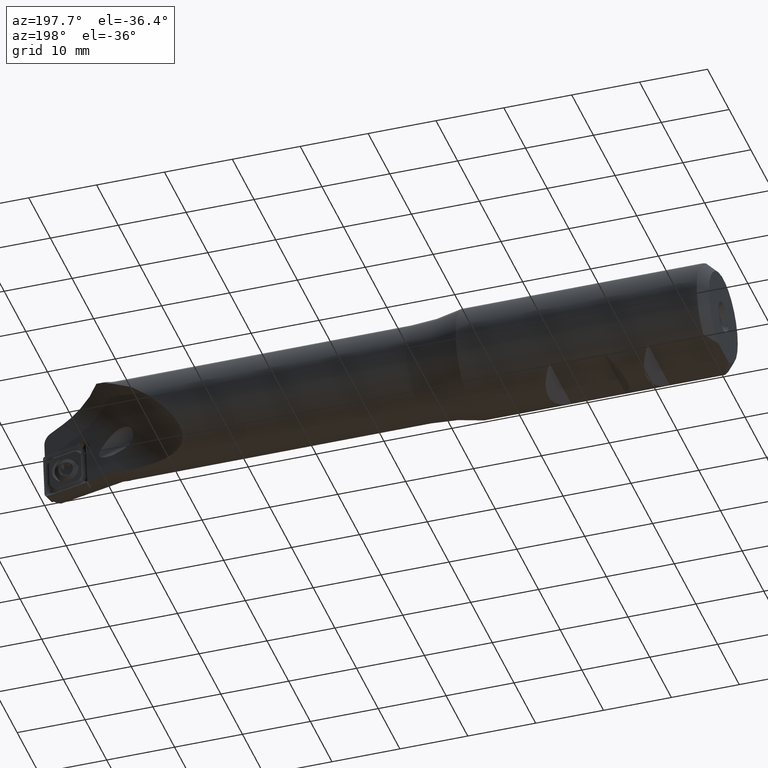
[diagram: clean part render]
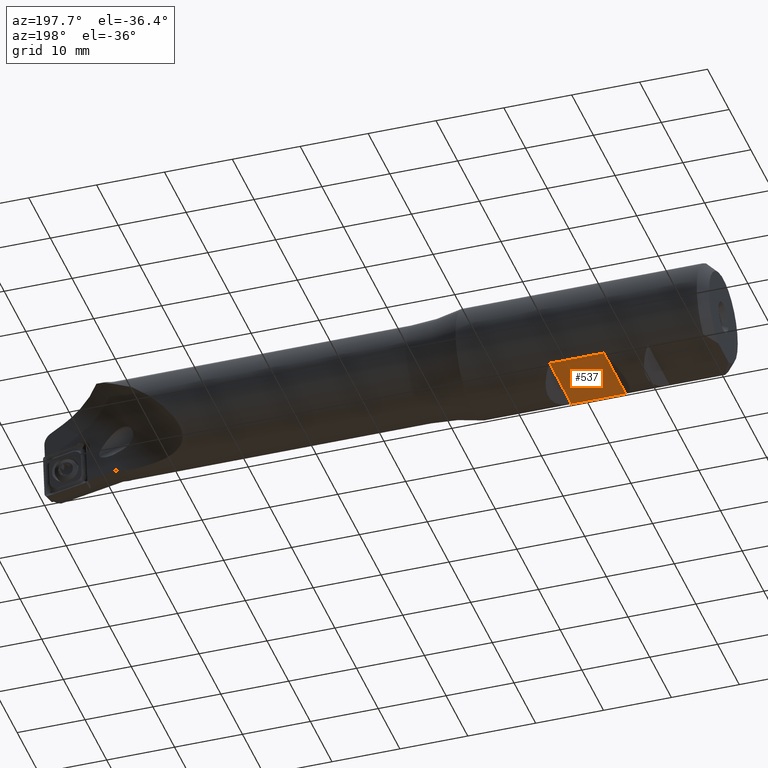
[diagram: same view with one face highlighted and labeled with its STEP entity id]
A machine part, auxiliary view. The second image highlights one B-rep face of the part: STEP entity #537.
In plain terms, the highlighted planar face has unit normal (0, 0, 1).
Its self-contained STEP definition (entity closure, byte-faithful):
#36 = LINE ( 'NONE', #3296, #1369 ) ;
#66 = VERTEX_POINT ( 'NONE', #3218 ) ;
#351 = LINE ( 'NONE', #675, #716 ) ;
#379 = PLANE ( 'NONE',  #2054 ) ;
#387 = DIRECTION ( 'NONE',  ( -0.0000000000000000000, 1.000000000000000000, -0.0000000000000000000 ) ) ;
#537 = ADVANCED_FACE ( 'NONE', ( #1463 ), #379, .F. ) ;
#548 = EDGE_CURVE ( 'NONE', #66, #3536, #351, .T. ) ;
#675 = CARTESIAN_POINT ( 'NONE',  ( -3.175455607189903200, 5.055689863905816300, -6.199999999999999300 ) ) ;
#716 = VECTOR ( 'NONE', #1765, 1000.000000000000000 ) ;
#730 = DIRECTION ( 'NONE',  ( -0.0000000000000000000, 1.000000000000000000, -0.0000000000000000000 ) ) ;
#1120 = EDGE_LOOP ( 'NONE', ( #1578, #1698, #2112, #3201 ) ) ;
#1324 = CARTESIAN_POINT ( 'NONE',  ( 16.00000000000000000, -5.055689863905817200, -6.199999999999999300 ) ) ;
#1369 = VECTOR ( 'NONE', #2160, 1000.000000000000000 ) ;
#1463 = FACE_OUTER_BOUND ( 'NONE', #1120, .T. ) ;
#1495 = CARTESIAN_POINT ( 'NONE',  ( 16.00000000000000000, -9.025000000000000400, -6.199999999999999300 ) ) ;
#1578 = ORIENTED_EDGE ( 'NONE', *, *, #3270, .F. ) ;
#1615 = EDGE_CURVE ( 'NONE', #1796, #3536, #3666, .T. ) ;
#1698 = ORIENTED_EDGE ( 'NONE', *, *, #2608, .F. ) ;
#1765 = DIRECTION ( 'NONE',  ( -1.000000000000000000, -0.0000000000000000000, -0.0000000000000000000 ) ) ;
#1796 = VERTEX_POINT ( 'NONE', #1324 ) ;
#1847 = CARTESIAN_POINT ( 'NONE',  ( 24.00000000000000000, -5.055689863905816300, -6.199999999999999300 ) ) ;
#2054 = AXIS2_PLACEMENT_3D ( 'NONE', #1495, #2368, #2655 ) ;
#2097 = CARTESIAN_POINT ( 'NONE',  ( 16.00000000000000000, -9.025000000000000400, -6.199999999999999300 ) ) ;
#2112 = ORIENTED_EDGE ( 'NONE', *, *, #1615, .T. ) ;
#2160 = DIRECTION ( 'NONE',  ( 1.000000000000000000, 0.0000000000000000000, 0.0000000000000000000 ) ) ;
#2256 = VECTOR ( 'NONE', #730, 1000.000000000000000 ) ;
#2368 = DIRECTION ( 'NONE',  ( -0.0000000000000000000, 0.0000000000000000000, 1.000000000000000000 ) ) ;
#2392 = LINE ( 'NONE', #2725, #2256 ) ;
#2608 = EDGE_CURVE ( 'NONE', #1796, #2629, #36, .T. ) ;
#2629 = VERTEX_POINT ( 'NONE', #1847 ) ;
#2655 = DIRECTION ( 'NONE',  ( 1.000000000000000000, 0.0000000000000000000, 0.0000000000000000000 ) ) ;
#2725 = CARTESIAN_POINT ( 'NONE',  ( 24.00000000000000000, -9.025000000000000400, -6.199999999999999300 ) ) ;
#3095 = CARTESIAN_POINT ( 'NONE',  ( 16.00000000000000000, 5.055689863905815400, -6.199999999999999300 ) ) ;
#3201 = ORIENTED_EDGE ( 'NONE', *, *, #548, .F. ) ;
#3218 = CARTESIAN_POINT ( 'NONE',  ( 24.00000000000000000, 5.055689863905815400, -6.199999999999999300 ) ) ;
#3270 = EDGE_CURVE ( 'NONE', #2629, #66, #2392, .T. ) ;
#3296 = CARTESIAN_POINT ( 'NONE',  ( -3.175455607189903200, -5.055689863905816300, -6.199999999999999300 ) ) ;
#3484 = VECTOR ( 'NONE', #387, 1000.000000000000000 ) ;
#3536 = VERTEX_POINT ( 'NONE', #3095 ) ;
#3666 = LINE ( 'NONE', #2097, #3484 ) ;